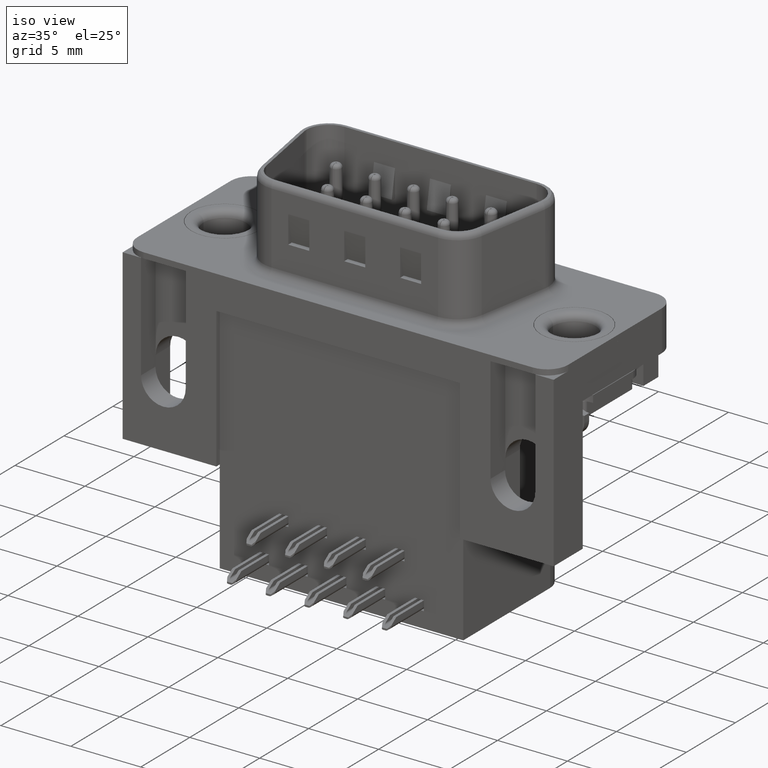
[diagram: clean part render]
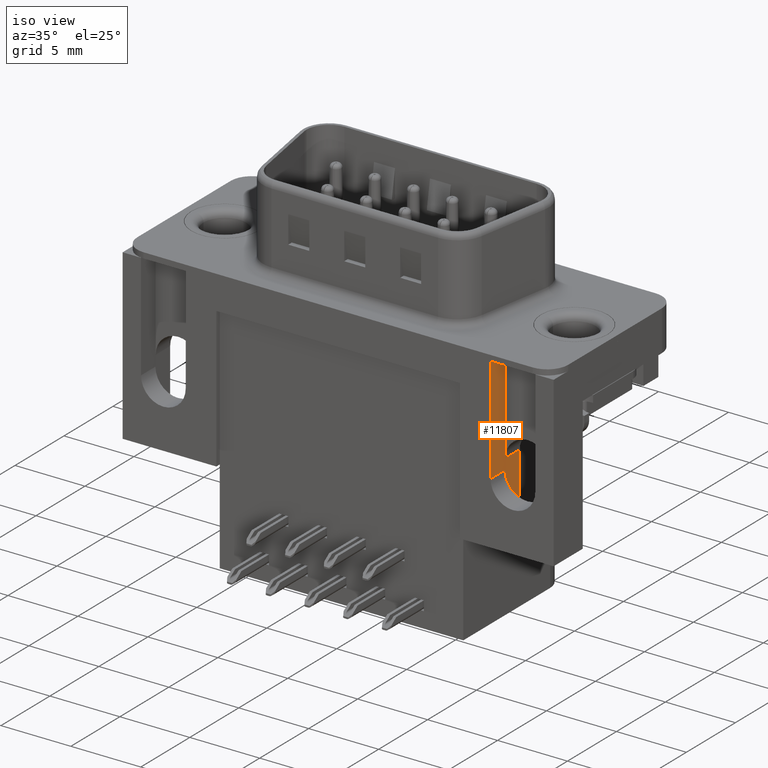
[diagram: same view with one face highlighted and labeled with its STEP entity id]
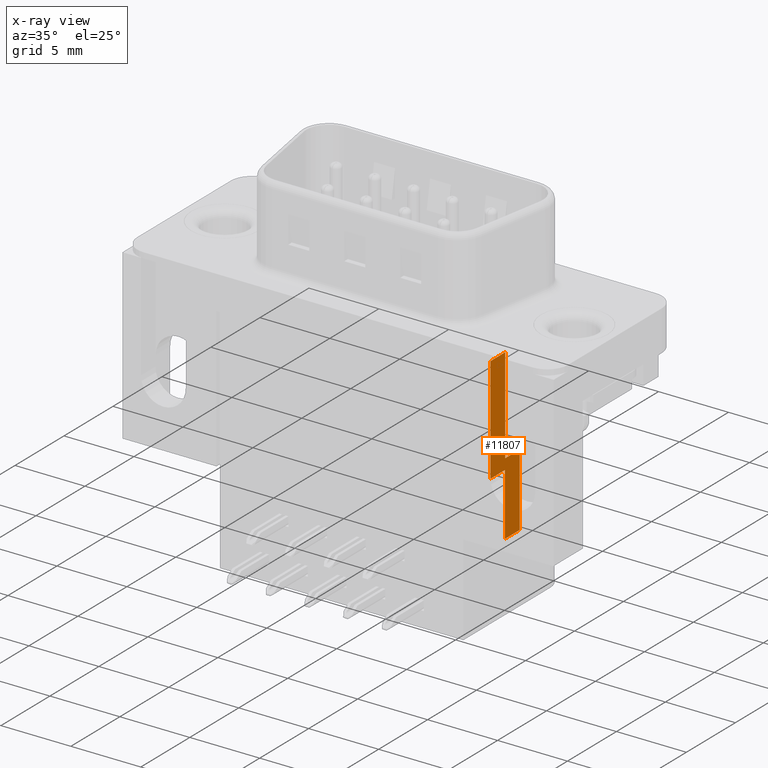
[diagram: x-ray of the same camera — body ghosted, the highlighted face saturated]
A machine part, iso view. The second image highlights one B-rep face of the part: STEP entity #11807.
The next image is the same camera in x-ray: the body ghosted, the highlighted face saturated — about 0% of this face is hidden behind the body in this view.
In plain terms, the highlighted planar face has unit normal (-1, 0, 0).
Its self-contained STEP definition (entity closure, byte-faithful):
#117 = VERTEX_POINT ( 'NONE', #7704 ) ;
#211 = LINE ( 'NONE', #8288, #2809 ) ;
#234 = DIRECTION ( 'NONE',  ( -0.0000000000000000000, -1.000000000000000000, -0.0000000000000000000 ) ) ;
#237 = CARTESIAN_POINT ( 'NONE',  ( 23.38999999999997900, -4.794999999999998200, -6.850000000000000500 ) ) ;
#321 = LINE ( 'NONE', #11434, #8323 ) ;
#632 = EDGE_CURVE ( 'NONE', #8293, #6303, #10454, .T. ) ;
#682 = ORIENTED_EDGE ( 'NONE', *, *, #632, .T. ) ;
#769 = VERTEX_POINT ( 'NONE', #12582 ) ;
#925 = DIRECTION ( 'NONE',  ( 0.0000000000000000000, 1.000000000000000000, -0.0000000000000000000 ) ) ;
#1315 = VERTEX_POINT ( 'NONE', #13108 ) ;
#1542 = AXIS2_PLACEMENT_3D ( 'NONE', #1867, #10549, #4153 ) ;
#1867 = CARTESIAN_POINT ( 'NONE',  ( 23.39000000000000800, -4.774999999999997700, -7.599999999999999600 ) ) ;
#2021 = EDGE_CURVE ( 'NONE', #11576, #117, #6275, .T. ) ;
#2099 = FACE_OUTER_BOUND ( 'NONE', #10149, .T. ) ;
#2809 = VECTOR ( 'NONE', #3148, 1000.000000000000000 ) ;
#2932 = VECTOR ( 'NONE', #234, 1000.000000000000000 ) ;
#3148 = DIRECTION ( 'NONE',  ( -0.0000000000000000000, -0.0000000000000000000, 1.000000000000000000 ) ) ;
#3391 = EDGE_CURVE ( 'NONE', #1315, #6303, #11523, .T. ) ;
#3601 = EDGE_CURVE ( 'NONE', #11576, #1315, #9836, .T. ) ;
#3710 = ORIENTED_EDGE ( 'NONE', *, *, #11024, .F. ) ;
#3892 = CARTESIAN_POINT ( 'NONE',  ( 23.39000000000000800, -4.774999999999997700, -7.599999999999999600 ) ) ;
#3945 = EDGE_CURVE ( 'NONE', #769, #8293, #321, .T. ) ;
#4096 = CARTESIAN_POINT ( 'NONE',  ( 23.39000000000000800, -6.274999999999998600, 0.0000000000000000000 ) ) ;
#4153 = DIRECTION ( 'NONE',  ( 0.0000000000000000000, 0.0000000000000000000, 1.000000000000000000 ) ) ;
#4386 = CARTESIAN_POINT ( 'NONE',  ( 23.39000000000000800, -6.274999999999998600, -7.599999999999999600 ) ) ;
#4475 = VECTOR ( 'NONE', #8068, 1000.000000000000000 ) ;
#4530 = CARTESIAN_POINT ( 'NONE',  ( 23.39000000000000800, -6.274999999999998600, -7.599999999999999600 ) ) ;
#5246 = EDGE_CURVE ( 'NONE', #769, #14019, #8269, .T. ) ;
#6275 = LINE ( 'NONE', #10616, #8790 ) ;
#6303 = VERTEX_POINT ( 'NONE', #4386 ) ;
#7291 = CARTESIAN_POINT ( 'NONE',  ( 23.39000000000000800, -4.774999999999997700, -7.599999999999999600 ) ) ;
#7341 = PLANE ( 'NONE',  #1542 ) ;
#7629 = VECTOR ( 'NONE', #13074, 1000.000000000000000 ) ;
#7704 = CARTESIAN_POINT ( 'NONE',  ( 23.39000000000000800, -3.294999999999999500, -12.05000000000000100 ) ) ;
#8006 = ORIENTED_EDGE ( 'NONE', *, *, #5246, .F. ) ;
#8068 = DIRECTION ( 'NONE',  ( -0.0000000000000000000, -0.0000000000000000000, 1.000000000000000000 ) ) ;
#8183 = DIRECTION ( 'NONE',  ( -0.0000000000000000000, -0.0000000000000000000, -1.000000000000000000 ) ) ;
#8209 = ORIENTED_EDGE ( 'NONE', *, *, #3601, .F. ) ;
#8269 = LINE ( 'NONE', #3892, #11103 ) ;
#8288 = CARTESIAN_POINT ( 'NONE',  ( 23.38999999999997900, -3.294999999999998200, -6.850000000000000500 ) ) ;
#8293 = VERTEX_POINT ( 'NONE', #4096 ) ;
#8323 = VECTOR ( 'NONE', #9931, 1000.000000000000000 ) ;
#8731 = VECTOR ( 'NONE', #8896, 1000.000000000000000 ) ;
#8790 = VECTOR ( 'NONE', #925, 1000.000000000000000 ) ;
#8896 = DIRECTION ( 'NONE',  ( -0.0000000000000000000, 1.000000000000000000, -0.0000000000000000000 ) ) ;
#9055 = LINE ( 'NONE', #237, #8731 ) ;
#9438 = VERTEX_POINT ( 'NONE', #10424 ) ;
#9523 = CARTESIAN_POINT ( 'NONE',  ( 23.38999999999997900, -4.794999999999998200, -6.850000000000000500 ) ) ;
#9836 = LINE ( 'NONE', #9523, #4475 ) ;
#9931 = DIRECTION ( 'NONE',  ( -0.0000000000000000000, -1.000000000000000000, -0.0000000000000000000 ) ) ;
#10086 = CARTESIAN_POINT ( 'NONE',  ( 23.38999999999997900, -4.794999999999998200, -12.04999999999999900 ) ) ;
#10149 = EDGE_LOOP ( 'NONE', ( #8209, #13013, #10374, #3710, #8006, #13247, #682, #11351 ) ) ;
#10374 = ORIENTED_EDGE ( 'NONE', *, *, #11295, .T. ) ;
#10424 = CARTESIAN_POINT ( 'NONE',  ( 23.38999999999997900, -3.294999999999998200, -6.850000000000000500 ) ) ;
#10454 = LINE ( 'NONE', #4530, #7629 ) ;
#10549 = DIRECTION ( 'NONE',  ( -1.000000000000000000, 0.0000000000000000000, 0.0000000000000000000 ) ) ;
#10616 = CARTESIAN_POINT ( 'NONE',  ( 23.39000000000000800, -4.774999999999997700, -12.05000000000000100 ) ) ;
#11024 = EDGE_CURVE ( 'NONE', #14019, #9438, #9055, .T. ) ;
#11103 = VECTOR ( 'NONE', #8183, 1000.000000000000000 ) ;
#11295 = EDGE_CURVE ( 'NONE', #117, #9438, #211, .T. ) ;
#11351 = ORIENTED_EDGE ( 'NONE', *, *, #3391, .F. ) ;
#11434 = CARTESIAN_POINT ( 'NONE',  ( 23.39000000000000800, -4.774999999999997700, 0.0000000000000000000 ) ) ;
#11523 = LINE ( 'NONE', #7291, #2932 ) ;
#11576 = VERTEX_POINT ( 'NONE', #10086 ) ;
#11807 = ADVANCED_FACE ( 'NONE', ( #2099 ), #7341, .F. ) ;
#12231 = CARTESIAN_POINT ( 'NONE',  ( 23.38999999999997900, -4.774999999999997700, -6.850000000000000500 ) ) ;
#12582 = CARTESIAN_POINT ( 'NONE',  ( 23.39000000000000800, -4.774999999999997700, 0.0000000000000000000 ) ) ;
#13013 = ORIENTED_EDGE ( 'NONE', *, *, #2021, .T. ) ;
#13074 = DIRECTION ( 'NONE',  ( -0.0000000000000000000, -0.0000000000000000000, -1.000000000000000000 ) ) ;
#13108 = CARTESIAN_POINT ( 'NONE',  ( 23.39000000000000800, -4.794999999999998200, -7.599999999999999600 ) ) ;
#13247 = ORIENTED_EDGE ( 'NONE', *, *, #3945, .T. ) ;
#14019 = VERTEX_POINT ( 'NONE', #12231 ) ;